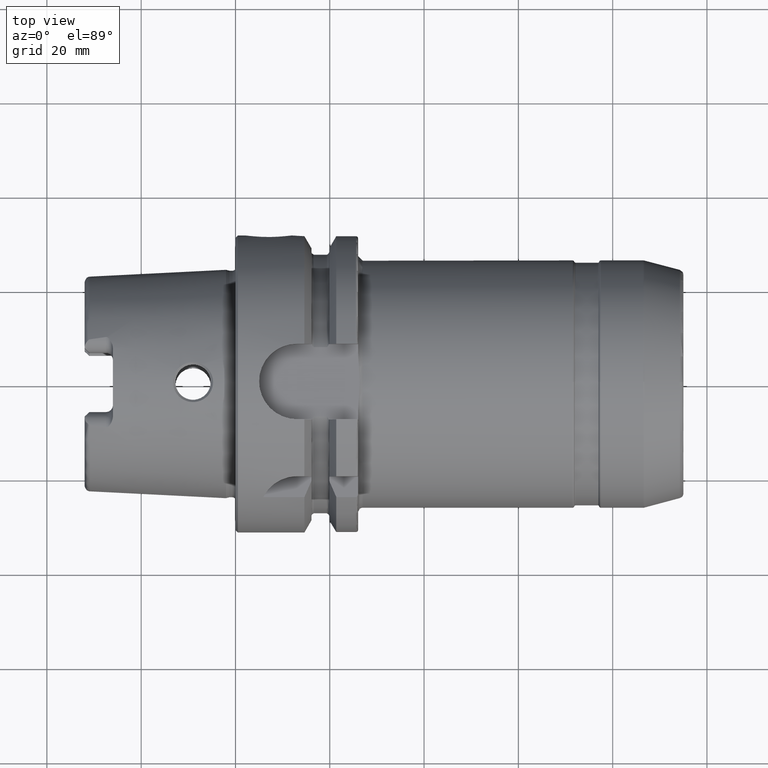
[diagram: clean part render]
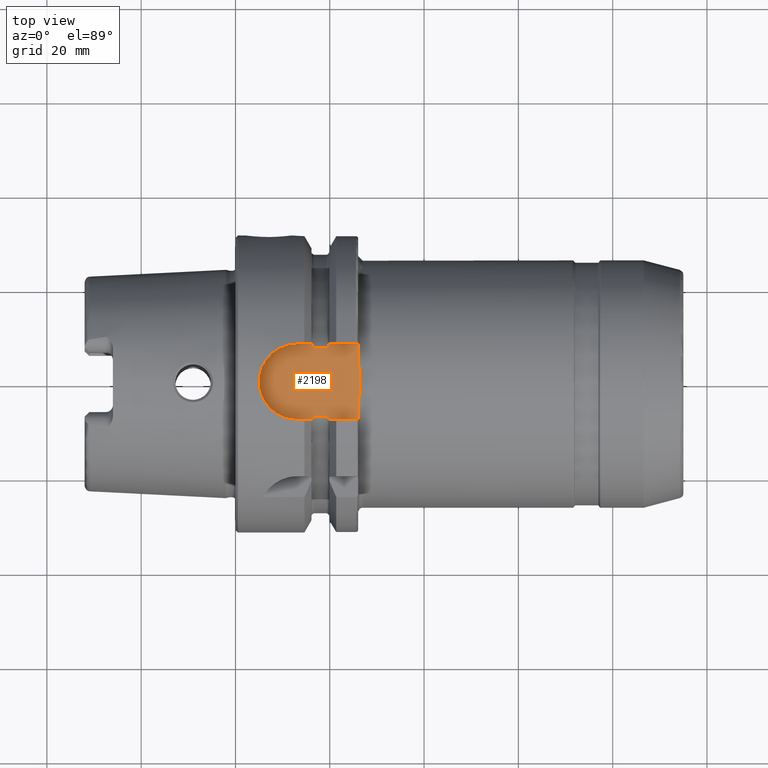
[diagram: same view with one face highlighted and labeled with its STEP entity id]
A machine part, top view. The second image highlights one B-rep face of the part: STEP entity #2198.
In plain terms, the highlighted planar face has unit normal (0, 0, 1).
Its self-contained STEP definition (entity closure, byte-faithful):
#40=B_SPLINE_CURVE_WITH_KNOTS('',3,(#3320,#3321,#3322,#3323,#3324,#3325,
#3326,#3327,#3328,#3329),.UNSPECIFIED.,.F.,.F.,(4,2,2,2,4),(1.31558448451124,
1.51269096694821,1.91210835797402,2.31152574899983,2.5086322314368),
 .UNSPECIFIED.);
#86=B_SPLINE_CURVE_WITH_KNOTS('',3,(#4439,#4440,#4441,#4442,#4443,#4444,
#4445,#4446,#4447,#4448),.UNSPECIFIED.,.F.,.F.,(4,2,2,2,4),(0.328785692776271,
0.334026201575553,0.340879824321645,0.368343350403883,0.404857107979834),
 .UNSPECIFIED.);
#89=B_SPLINE_CURVE_WITH_KNOTS('',3,(#4470,#4471,#4472,#4473,#4474,#4475,
#4476,#4477,#4478,#4479),.UNSPECIFIED.,.F.,.F.,(4,2,2,2,4),(0.252714277572707,
0.289228035148658,0.316691561230897,0.323545183976988,0.32878569277627),
 .UNSPECIFIED.);
#93=B_SPLINE_CURVE_WITH_KNOTS('',3,(#4533,#4534,#4535,#4536,#4537,#4538,
#4539,#4540,#4541,#4542),.UNSPECIFIED.,.F.,.F.,(4,2,2,2,4),(0.32878569277627,
0.334026201575552,0.340879824321644,0.368343350403882,0.404857107979833),
 .UNSPECIFIED.);
#94=B_SPLINE_CURVE_WITH_KNOTS('',3,(#4545,#4546,#4547,#4548,#4549,#4550,
#4551,#4552,#4553,#4554),.UNSPECIFIED.,.F.,.F.,(4,2,2,2,4),(0.252714277572707,
0.289228035148658,0.316691561230897,0.323545183976989,0.328785692776271),
 .UNSPECIFIED.);
#140=PLANE('',#2451);
#276=FACE_OUTER_BOUND('',#408,.T.);
#408=EDGE_LOOP('',(#1851,#1852,#1853,#1854,#1855,#1856,#1857,#1858,#1859,
#1860,#1861,#1862,#1863,#1864));
#467=LINE('',#3340,#579);
#541=LINE('',#4461,#653);
#542=LINE('',#4481,#654);
#543=LINE('',#4484,#655);
#548=LINE('',#4519,#660);
#550=LINE('',#4523,#662);
#551=LINE('',#4531,#663);
#552=LINE('',#4544,#664);
#579=VECTOR('',#2664,10.);
#653=VECTOR('',#2982,10.);
#654=VECTOR('',#2987,10.);
#655=VECTOR('',#2990,10.);
#660=VECTOR('',#3001,10.);
#662=VECTOR('',#3005,10.);
#663=VECTOR('',#3008,10.);
#664=VECTOR('',#3009,10.);
#781=CIRCLE('',#2448,8.);
#862=VERTEX_POINT('',#3317);
#863=VERTEX_POINT('',#3319);
#865=VERTEX_POINT('',#3339);
#1007=VERTEX_POINT('',#4436);
#1008=VERTEX_POINT('',#4438);
#1009=VERTEX_POINT('',#4459);
#1010=VERTEX_POINT('',#4463);
#1011=VERTEX_POINT('',#4483);
#1012=VERTEX_POINT('',#4487);
#1018=VERTEX_POINT('',#4511);
#1019=VERTEX_POINT('',#4518);
#1020=VERTEX_POINT('',#4522);
#1021=VERTEX_POINT('',#4532);
#1022=VERTEX_POINT('',#4543);
#1099=EDGE_CURVE('',#863,#862,#40,.F.);
#1102=EDGE_CURVE('',#863,#865,#467,.T.);
#1299=EDGE_CURVE('',#1007,#1008,#86,.T.);
#1303=EDGE_CURVE('',#1009,#1007,#541,.T.);
#1305=EDGE_CURVE('',#1010,#1009,#89,.T.);
#1306=EDGE_CURVE('',#1010,#865,#542,.T.);
#1307=EDGE_CURVE('',#1011,#1008,#543,.T.);
#1309=EDGE_CURVE('',#1012,#1011,#781,.T.);
#1316=EDGE_CURVE('',#1019,#1018,#548,.T.);
#1318=EDGE_CURVE('',#1020,#1012,#550,.T.);
#1320=EDGE_CURVE('',#1019,#862,#551,.T.);
#1321=EDGE_CURVE('',#1021,#1018,#93,.T.);
#1322=EDGE_CURVE('',#1022,#1021,#552,.T.);
#1323=EDGE_CURVE('',#1020,#1022,#94,.T.);
#1851=ORIENTED_EDGE('',*,*,#1299,.F.);
#1852=ORIENTED_EDGE('',*,*,#1303,.F.);
#1853=ORIENTED_EDGE('',*,*,#1305,.F.);
#1854=ORIENTED_EDGE('',*,*,#1306,.T.);
#1855=ORIENTED_EDGE('',*,*,#1102,.F.);
#1856=ORIENTED_EDGE('',*,*,#1099,.T.);
#1857=ORIENTED_EDGE('',*,*,#1320,.F.);
#1858=ORIENTED_EDGE('',*,*,#1316,.T.);
#1859=ORIENTED_EDGE('',*,*,#1321,.F.);
#1860=ORIENTED_EDGE('',*,*,#1322,.F.);
#1861=ORIENTED_EDGE('',*,*,#1323,.F.);
#1862=ORIENTED_EDGE('',*,*,#1318,.T.);
#1863=ORIENTED_EDGE('',*,*,#1309,.T.);
#1864=ORIENTED_EDGE('',*,*,#1307,.T.);
#2198=ADVANCED_FACE('',(#276),#140,.T.);
#2448=AXIS2_PLACEMENT_3D('',#4488,#2994,#2995);
#2451=AXIS2_PLACEMENT_3D('',#4530,#3006,#3007);
#2664=DIRECTION('',(0.,-1.,0.));
#2982=DIRECTION('',(-1.,0.,0.));
#2987=DIRECTION('',(1.,3.41607084500048E-16,0.));
#2990=DIRECTION('',(1.,3.41607084500048E-16,0.));
#2994=DIRECTION('center_axis',(0.,0.,1.));
#2995=DIRECTION('ref_axis',(0.,1.,0.));
#3001=DIRECTION('',(-1.,-2.56205313375036E-16,0.));
#3005=DIRECTION('',(-1.,-2.56205313375036E-16,0.));
#3006=DIRECTION('center_axis',(0.,0.,1.));
#3007=DIRECTION('ref_axis',(1.,0.,0.));
#3008=DIRECTION('',(0.,-1.,0.));
#3009=DIRECTION('',(1.,0.,0.));
#3317=CARTESIAN_POINT('',(26.,6.34921254960012,26.5));
#3319=CARTESIAN_POINT('',(26.,-6.34921254960012,26.5));
#3320=CARTESIAN_POINT('Ctrl Pts',(26.,6.34921254960012,26.5));
#3321=CARTESIAN_POINT('Ctrl Pts',(26.,5.69219094147689,26.5));
#3322=CARTESIAN_POINT('Ctrl Pts',(26.0417206591195,4.90486963902063,26.5));
#3323=CARTESIAN_POINT('Ctrl Pts',(26.1834820080938,2.9215165119335,26.5));
#3324=CARTESIAN_POINT('Ctrl Pts',(26.3385621722338,1.33139130341937,26.5));
#3325=CARTESIAN_POINT('Ctrl Pts',(26.3385621722338,-1.33139130341937,26.5));
#3326=CARTESIAN_POINT('Ctrl Pts',(26.1834820080938,-2.9215165119335,26.5));
#3327=CARTESIAN_POINT('Ctrl Pts',(26.0417206591195,-4.90486963902063,26.5));
#3328=CARTESIAN_POINT('Ctrl Pts',(26.,-5.69219094147689,26.5));
#3329=CARTESIAN_POINT('Ctrl Pts',(26.,-6.34921254960012,26.5));
#3339=CARTESIAN_POINT('',(26.,-8.,26.5));
#3340=CARTESIAN_POINT('',(26.,5.55111512312578E-16,26.5));
#4436=CARTESIAN_POINT('',(16.625,-7.34846922834952,26.5));
#4438=CARTESIAN_POINT('',(16.2397987608563,-8.,26.5));
#4439=CARTESIAN_POINT('Ctrl Pts',(16.625,-7.34846922834952,26.5));
#4440=CARTESIAN_POINT('Ctrl Pts',(16.6075316373357,-7.34846922834952,26.5));
#4441=CARTESIAN_POINT('Ctrl Pts',(16.587038394856,-7.35287762173868,26.5));
#4442=CARTESIAN_POINT('Ctrl Pts',(16.5496994821687,-7.36807649661538,26.5));
#4443=CARTESIAN_POINT('Ctrl Pts',(16.5270295504762,-7.38349170057081,26.5));
#4444=CARTESIAN_POINT('Ctrl Pts',(16.4411490019356,-7.4590543697872,26.5));
#4445=CARTESIAN_POINT('Ctrl Pts',(16.3906456489289,-7.5566112023157,26.5));
#4446=CARTESIAN_POINT('Ctrl Pts',(16.3063113289614,-7.75248496685372,26.5));
#4447=CARTESIAN_POINT('Ctrl Pts',(16.2699372185845,-7.87398729043679,26.5));
#4448=CARTESIAN_POINT('Ctrl Pts',(16.2397987608563,-8.,26.5));
#4459=CARTESIAN_POINT('',(19.375,-7.34846922834952,26.5));
#4461=CARTESIAN_POINT('',(18.,-7.34846922834952,26.5));
#4463=CARTESIAN_POINT('',(19.7602012391436,-8.,26.5));
#4470=CARTESIAN_POINT('Ctrl Pts',(19.7602012391436,-8.,26.5));
#4471=CARTESIAN_POINT('Ctrl Pts',(19.7300627814155,-7.87398729043679,26.5));
#4472=CARTESIAN_POINT('Ctrl Pts',(19.6936886710386,-7.75248496685372,26.5));
#4473=CARTESIAN_POINT('Ctrl Pts',(19.6093543510711,-7.5566112023157,26.5));
#4474=CARTESIAN_POINT('Ctrl Pts',(19.5588509980644,-7.45905436978719,26.5));
#4475=CARTESIAN_POINT('Ctrl Pts',(19.4729704495238,-7.38349170057082,26.5));
#4476=CARTESIAN_POINT('Ctrl Pts',(19.4503005178313,-7.3680764966154,26.5));
#4477=CARTESIAN_POINT('Ctrl Pts',(19.412961605144,-7.35287762173869,26.5));
#4478=CARTESIAN_POINT('Ctrl Pts',(19.3924683626643,-7.34846922834952,26.5));
#4479=CARTESIAN_POINT('Ctrl Pts',(19.375,-7.34846922834952,26.5));
#4481=CARTESIAN_POINT('',(13.,-8.,26.5));
#4483=CARTESIAN_POINT('',(13.,-8.,26.5));
#4484=CARTESIAN_POINT('',(13.,-8.,26.5));
#4487=CARTESIAN_POINT('',(13.,8.,26.5));
#4488=CARTESIAN_POINT('Origin',(13.,0.,26.5));
#4511=CARTESIAN_POINT('',(19.7602012391436,8.,26.5));
#4518=CARTESIAN_POINT('',(26.,8.,26.5));
#4519=CARTESIAN_POINT('',(26.,8.,26.5));
#4522=CARTESIAN_POINT('',(16.2397987608563,8.,26.5));
#4523=CARTESIAN_POINT('',(26.,8.,26.5));
#4530=CARTESIAN_POINT('Origin',(15.5,1.11022302462516E-15,26.5));
#4531=CARTESIAN_POINT('',(26.,5.55111512312578E-16,26.5));
#4532=CARTESIAN_POINT('',(19.375,7.34846922834952,26.5));
#4533=CARTESIAN_POINT('Ctrl Pts',(19.375,7.34846922834952,26.5));
#4534=CARTESIAN_POINT('Ctrl Pts',(19.3924683626643,7.34846922834952,26.5));
#4535=CARTESIAN_POINT('Ctrl Pts',(19.412961605144,7.35287762173869,26.5));
#4536=CARTESIAN_POINT('Ctrl Pts',(19.4503005178313,7.3680764966154,26.5));
#4537=CARTESIAN_POINT('Ctrl Pts',(19.4729704495238,7.38349170057082,26.5));
#4538=CARTESIAN_POINT('Ctrl Pts',(19.5588509980644,7.45905436978719,26.5));
#4539=CARTESIAN_POINT('Ctrl Pts',(19.6093543510711,7.5566112023157,26.5));
#4540=CARTESIAN_POINT('Ctrl Pts',(19.6936886710386,7.75248496685372,26.5));
#4541=CARTESIAN_POINT('Ctrl Pts',(19.7300627814155,7.87398729043679,26.5));
#4542=CARTESIAN_POINT('Ctrl Pts',(19.7602012391436,8.,26.5));
#4543=CARTESIAN_POINT('',(16.625,7.34846922834952,26.5));
#4544=CARTESIAN_POINT('',(18.,7.34846922834952,26.5));
#4545=CARTESIAN_POINT('Ctrl Pts',(16.2397987608563,8.,26.5));
#4546=CARTESIAN_POINT('Ctrl Pts',(16.2699372185845,7.87398729043679,26.5));
#4547=CARTESIAN_POINT('Ctrl Pts',(16.3063113289614,7.75248496685372,26.5));
#4548=CARTESIAN_POINT('Ctrl Pts',(16.3906456489289,7.5566112023157,26.5));
#4549=CARTESIAN_POINT('Ctrl Pts',(16.4411490019356,7.4590543697872,26.5));
#4550=CARTESIAN_POINT('Ctrl Pts',(16.5270295504762,7.38349170057081,26.5));
#4551=CARTESIAN_POINT('Ctrl Pts',(16.5496994821687,7.36807649661538,26.5));
#4552=CARTESIAN_POINT('Ctrl Pts',(16.587038394856,7.35287762173868,26.5));
#4553=CARTESIAN_POINT('Ctrl Pts',(16.6075316373357,7.34846922834952,26.5));
#4554=CARTESIAN_POINT('Ctrl Pts',(16.625,7.34846922834952,26.5));